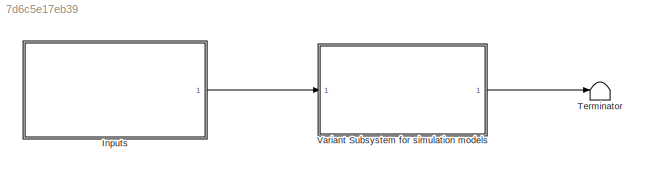
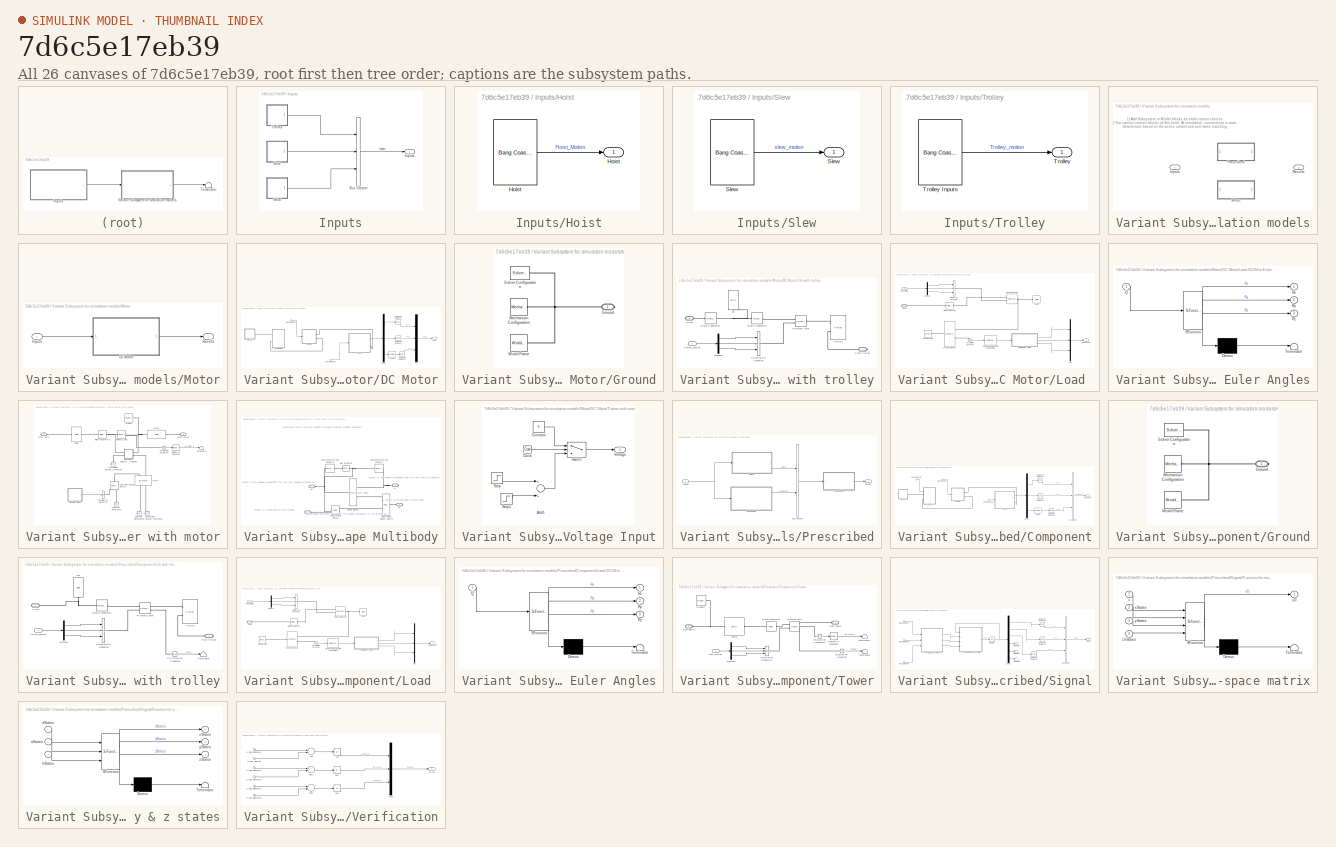
[diagram: thumbnail index - all 26 canvases of the model, root first then tree order]
MODEL slx_7d6c5e17eb39
KIND model
CONFIG AbsTol = auto
CONFIG EnableMultiTasking = off
CONFIG FixedStep = simPrm.h
CONFIG MaxStep = auto
CONFIG MinStep = auto
CONFIG RelTol = 1e-3
CONFIG SampleTimeConstraint = Unconstrained
CONFIG Solver = ode4
CONFIG SolverName = ode4
CONFIG StartTime = 0.0
CONFIG StopTime = simPrm.tEnd
BLOCK [SubSystem] Inputs
  Ports = [0, 1]
  RequestExecContextInheritance = off
BLOCK [BusCreator] Inputs/Bus Creator
  DisplayOption = bar
  InheritFromInputs = on
  Inputs = 3
  OutDataTypeStr = Bus: Inputs
  Ports = [3, 1]
BLOCK [SubSystem] Inputs/Hoist
  Ports = [0, 1]
  RequestExecContextInheritance = off
BLOCK [Reference] Inputs/Hoist/Hoist  REF=bcbLibrary/Bang Coast Bang
  AttributesFormatString = tStart = %<tStart>, tCoast %<tCoast>\npulseWidth = %<tPW>, A = %<amp>\nposIC = %<posIC>, spdIC = %<spdIC>
  Ports = [0, 1]
  SourceBlock = bcbLibrary/Bang Coast Bang
BLOCK [Outport] Inputs/Hoist/Hoist 
  IconDisplay = Port number
BLOCK [Outport] Inputs/Inputs
  IconDisplay = Port number
  OutDataTypeStr = Bus: Inputs
BLOCK [SubSystem] Inputs/Slew
  Ports = [0, 1]
  RequestExecContextInheritance = off
BLOCK [Reference] Inputs/Slew/Slew  REF=bcbLibrary/Bang Coast Bang
  AttributesFormatString = tStart = %<tStart>, tCoast %<tCoast>\npulseWidth = %<tPW>, A = %<amp>\nposIC = %<posIC>, spdIC = %<spdIC>
  Ports = [0, 1]
  SourceBlock = bcbLibrary/Bang Coast Bang
BLOCK [Outport] Inputs/Slew/Slew 
  IconDisplay = Port number
BLOCK [SubSystem] Inputs/Trolley
  Ports = [0, 1]
  RequestExecContextInheritance = off
BLOCK [Outport] Inputs/Trolley/Trolley
  IconDisplay = Port number
BLOCK [Reference] Inputs/Trolley/Trolley Inputs   REF=bcbLibrary/Bang Coast Bang
  AttributesFormatString = tStart = %<tStart>, tCoast %<tCoast>\npulseWidth = %<tPW>, A = %<amp>\nposIC = %<posIC>, spdIC = %<spdIC>
  Ports = [0, 1]
  SourceBlock = bcbLibrary/Bang Coast Bang
BLOCK [Terminator] Terminator
BLOCK [SubSystem] Variant Subsystem for simulation models
  Ports = [1, 1]
  RequestExecContextInheritance = off
  Variant = on
BLOCK [Inport] Variant Subsystem for simulation models/Inputs
  IconDisplay = Port number
  OutDataTypeStr = Bus: Inputs
BLOCK [SubSystem] Variant Subsystem for simulation models/Motor
  Ports = [1, 1]
  RequestExecContextInheritance = off
  VariantControl = SCENARIO==2
BLOCK [SubSystem] Variant Subsystem for simulation models/Motor/DC Motor
  Ports = [1, 1]
  RequestExecContextInheritance = off
BLOCK [Outport] Variant Subsystem for simulation models/Motor/DC Motor/Angles
  IconDisplay = Port number
BLOCK [Demux] Variant Subsystem for simulation models/Motor/DC Motor/Demux
  DisplayOption = bar
  Outputs = 3
  Ports = [1, 3]
BLOCK [SubSystem] Variant Subsystem for simulation models/Motor/DC Motor/Ground
  Ports = [0, 0, 0, 0, 0, 0, 1]
  RequestExecContextInheritance = off
BLOCK [PMIOPort] Variant Subsystem for simulation models/Motor/DC Motor/Ground/Ground
  Side = Right
BLOCK [Reference] Variant Subsystem for simulation models/Motor/DC Motor/Ground/Mechanism Configuration  REF=sm_lib/Utilities/Mechanism
Configuration
  Ports = [0, 0, 0, 0, 0, 0, 1]
  SourceBlock = sm_lib/Utilities/Mechanism\nConfiguration
  SourceProductBaseCode = MS
  SourceProductName = Simscape Multibody
  SourceType = Mechanism\nConfiguration
BLOCK [Reference] Variant Subsystem for simulation models/Motor/DC Motor/Ground/Solver Configuration  REF=nesl_utility/Solver
Configuration
  Ports = [0, 0, 0, 0, 0, 0, 1]
  SourceBlock = nesl_utility/Solver\nConfiguration
  SourceProductBaseCode = SS
  SourceProductName = Simscape
  SourceType = Solver\nConfiguration
BLOCK [Reference] Variant Subsystem for simulation models/Motor/DC Motor/Ground/World Frame  REF=sm_lib/Frames and
Transforms/World Frame
  Ports = [0, 0, 0, 0, 0, 0, 1]
  SourceBlock = sm_lib/Frames and\nTransforms/World Frame
  SourceProductBaseCode = MS
  SourceProductName = Simscape Multibody
  SourceType = World Frame
BLOCK [Inport] Variant Subsystem for simulation models/Motor/DC Motor/In Bus Element
  IconDisplay = Port number
BLOCK [Inport] Variant Subsystem for simulation models/Motor/DC Motor/In Bus Element2
  IconDisplay = Port number
BLOCK [SubSystem] Variant Subsystem for simulation models/Motor/DC Motor/Jib with trolley
  Ports = [1, 0, 0, 0, 0, 0, 2]
  RequestExecContextInheritance = off
BLOCK [Demux] Variant Subsystem for simulation models/Motor/DC Motor/Jib with trolley/Demux1
  DisplayOption = bar
  Outputs = 3
  Ports = [1, 3]
BLOCK [PMIOPort] Variant Subsystem for simulation models/Motor/DC Motor/Jib with trolley/From Trolley
  Side = Right
BLOCK [Reference] Variant Subsystem for simulation models/Motor/DC Motor/Jib with trolley/Jib  REF=sm_lib/Body Elements/Solid
  Ports = [0, 0, 0, 0, 0, 1]
  SourceBlock = sm_lib/Body Elements/Solid
  SourceProductBaseCode = MS
  SourceProductName = Simscape Multibody
  SourceType = Solid
BLOCK [Reference] Variant Subsystem for simulation models/Motor/DC Motor/Jib with trolley/Prismatic Joint  REF=sm_lib/Joints/Prismatic
Joint
  Ports = [0, 0, 0, 0, 0, 2, 1]
  SourceBlock = sm_lib/Joints/Prismatic\nJoint
  SourceProductBaseCode = MS
  SourceProductName = Simscape Multibody
  SourceType = Prismatic\nJoint
BLOCK [Reference] Variant Subsystem for simulation models/Motor/DC Motor/Jib with trolley/Rigid Transform3  REF=sm_lib/Frames and
Transforms/Rigid
Transform
  Ports = [0, 0, 0, 0, 0, 1, 1]
  SourceBlock = sm_lib/Frames and\nTransforms/Rigid\nTransform
  SourceProductBaseCode = MS
  SourceProductName = Simscape Multibody
  SourceType = Rigid\nTransform
BLOCK [Reference] Variant Subsystem for simulation models/Motor/DC Motor/Jib with trolley/Rigid Transform4  REF=sm_lib/Frames and
Transforms/Rigid
Transform
  Ports = [0, 0, 0, 0, 0, 1, 1]
  SourceBlock = sm_lib/Frames and\nTransforms/Rigid\nTransform
  SourceProductBaseCode = MS
  SourceProductName = Simscape Multibody
  SourceType = Rigid\nTransform
BLOCK [Reference] Variant Subsystem for simulation models/Motor/DC Motor/Jib with trolley/Simulink-PS Converter  REF=nesl_utility/Simulink-PS
Converter
  Ports = [3, 0, 0, 0, 0, 0, 1]
  SourceBlock = nesl_utility/Simulink-PS\nConverter
  SourceProductBaseCode = SS
  SourceProductName = Simscape
  SourceType = Simulink-PS\nConverter
BLOCK [PMIOPort] Variant Subsystem for simulation models/Motor/DC Motor/Jib with trolley/To Jib
  Port = 2
  Side = Right
BLOCK [Reference] Variant Subsystem for simulation models/Motor/DC Motor/Jib with trolley/Trolley1  REF=craneLib/Trolley
  Ports = [0, 0, 0, 0, 0, 0, 2]
  SourceBlock = craneLib/Trolley
BLOCK [Inport] Variant Subsystem for simulation models/Motor/DC Motor/Jib with trolley/Trolley_motion
  IconDisplay = Port number
BLOCK [SubSystem] Variant Subsystem for simulation models/Motor/DC Motor/Load 
  Ports = [1, 1, 0, 0, 0, 0, 1]
  RequestExecContextInheritance = off
BLOCK [Outport] Variant Subsystem for simulation models/Motor/DC Motor/Load /Component
  IconDisplay = Port number
BLOCK [SubSystem] Variant Subsystem for simulation models/Motor/DC Motor/Load /DCM to Euler Angles
  ErrorFcn = Stateflow.Translate.translate
  PermitHierarchicalResolution = ExplicitOnly
  Ports = [1, 3]
  RequestExecContextInheritance = off
  SFBlockType = MATLAB Function
  TreatAsAtomicUnit = on
BLOCK [Demux] Variant Subsystem for simulation models/Motor/DC Motor/Load /DCM to Euler Angles/ Demux 
  Outputs = 1
  Ports = [1, 1]
BLOCK [S-Function] Variant Subsystem for simulation models/Motor/DC Motor/Load /DCM to Euler Angles/ SFunction 
  EnableBusSupport = on
  FunctionName = sf_sfun
  PortCounts = [1 4]
  Ports = [1, 4]
  SFcnIsStateOwnerBlock = off
  SFunctionDeploymentMode = off
  Tag = Stateflow S-Function project4Model 1
BLOCK [Terminator] Variant Subsystem for simulation models/Motor/DC Motor/Load /DCM to Euler Angles/ Terminator 
BLOCK [Inport] Variant Subsystem for simulation models/Motor/DC Motor/Load /DCM to Euler Angles/Q
  IconDisplay = Port number
BLOCK [Outport] Variant Subsystem for simulation models/Motor/DC Motor/Load /DCM to Euler Angles/Rx
  IconDisplay = Port number
BLOCK [Outport] Variant Subsystem for simulation models/Motor/DC Motor/Load /DCM to Euler Angles/Ry
  IconDisplay = Port number
  Port = 2
BLOCK [Outport] Variant Subsystem for simulation models/Motor/DC Motor/Load /DCM to Euler Angles/Rz
  IconDisplay = Port number
  Port = 3
BLOCK [Demux] Variant Subsystem for simulation models/Motor/DC Motor/Load /Demux1
  DisplayOption = bar
  Outputs = 3
  Ports = [1, 3]
BLOCK [Inport] Variant Subsystem for simulation models/Motor/DC Motor/Load /Hoist_motion
  IconDisplay = Port number
BLOCK [Reference] Variant Subsystem for simulation models/Motor/DC Motor/Load /Load  REF=sm_lib/Body Elements/Solid
  Ports = [0, 0, 0, 0, 0, 1]
  SourceBlock = sm_lib/Body Elements/Solid
  SourceProductBaseCode = MS
  SourceProductName = Simscape Multibody
  SourceType = Solid
BLOCK [Mux] Variant Subsystem for simulation models/Motor/DC Motor/Load /Mux
  DisplayOption = bar
  Inputs = 3
  Ports = [3, 1]
BLOCK [Reference] Variant Subsystem for simulation models/Motor/DC Motor/Load /PS-Simulink Converter  REF=nesl_utility/PS-Simulink
Converter
  Ports = [0, 1, 0, 0, 0, 1]
  SourceBlock = nesl_utility/PS-Simulink\nConverter
  SourceProductBaseCode = SS
  SourceProductName = Simscape
  SourceType = PS-Simulink\nConverter
BLOCK [Reference] Variant Subsystem for simulation models/Motor/DC Motor/Load /Quaternions to Direction Cosine Matrix  REF=sharedtransform/Quaternions to 
Direction Cosine Matrix
  Ports = [1, 1]
  SourceBlock = sharedtransform/Quaternions to \nDirection Cosine Matrix
  SourceProductBaseCode = AE
  SourceProductName = Aerospace Blockset
  SourceType = Quaternion2DCM
BLOCK [Reference] Variant Subsystem for simulation models/Motor/DC Motor/Load /Rigid Transform5  REF=sm_lib/Frames and
Transforms/Rigid
Transform
  Ports = [0, 0, 0, 0, 0, 1, 1]
  SourceBlock = sm_lib/Frames and\nTransforms/Rigid\nTransform
  SourceProductBaseCode = MS
  SourceProductName = Simscape Multibody
  SourceType = Rigid\nTransform
BLOCK [Reference] Variant Subsystem for simulation models/Motor/DC Motor/Load /Simulink-PS Converter  REF=nesl_utility/Simulink-PS
Converter
  Ports = [3, 0, 0, 0, 0, 0, 1]
  SourceBlock = nesl_utility/Simulink-PS\nConverter
  SourceProductBaseCode = SS
  SourceProductName = Simscape
  SourceType = Simulink-PS\nConverter
BLOCK [Reference] Variant Subsystem for simulation models/Motor/DC Motor/Load /Telescoping Joint  REF=sm_lib/Joints/Telescoping
Joint
  Ports = [0, 0, 0, 0, 0, 2, 1]
  SourceBlock = sm_lib/Joints/Telescoping\nJoint
  SourceProductBaseCode = MS
  SourceProductName = Simscape Multibody
  SourceType = Telescoping\nJoint
BLOCK [PMIOPort] Variant Subsystem for simulation models/Motor/DC Motor/Load /To load 
  Side = Right
BLOCK [Reference] Variant Subsystem for simulation models/Motor/DC Motor/Load /Transform Sensor  REF=sm_lib/Frames and
Transforms/Transform
Sensor
  Ports = [0, 0, 0, 0, 0, 1, 2]
  SourceBlock = sm_lib/Frames and\nTransforms/Transform\nSensor
  SourceProductBaseCode = MS
  SourceProductName = Simscape Multibody
  SourceType = Transform\nSensor
BLOCK [Reference] Variant Subsystem for simulation models/Motor/DC Motor/Load /World Frame  REF=sm_lib/Frames and
Transforms/World Frame
  Ports = [0, 0, 0, 0, 0, 0, 1]
  SourceBlock = sm_lib/Frames and\nTransforms/World Frame
  SourceProductBaseCode = MS
  SourceProductName = Simscape Multibody
  SourceType = World Frame
BLOCK [Mux] Variant Subsystem for simulation models/Motor/DC Motor/Mux
  DisplayOption = bar
  Inputs = 3
  Ports = [3, 1]
BLOCK [Reference] Variant Subsystem for simulation models/Motor/DC Motor/Radians to Degrees1  REF=simulink_extras/Transformations/Radians
to Degrees
  Ports = [1, 1]
  SourceBlock = simulink_extras/Transformations/Radians\nto Degrees
  SourceProductBaseCode = SL
  SourceProductName = Simulink
  SourceType = RadiansToDegrees
BLOCK [Reference] Variant Subsystem for simulation models/Motor/DC Motor/Radians to Degrees2  REF=simulink_extras/Transformations/Radians
to Degrees
  Ports = [1, 1]
  SourceBlock = simulink_extras/Transformations/Radians\nto Degrees
  SourceProductBaseCode = SL
  SourceProductName = Simulink
  SourceType = RadiansToDegrees
BLOCK [Reference] Variant Subsystem for simulation models/Motor/DC Motor/Radians to Degrees3  REF=simulink_extras/Transformations/Radians
to Degrees
  Ports = [1, 1]
  SourceBlock = simulink_extras/Transformations/Radians\nto Degrees
  SourceProductBaseCode = SL
  SourceProductName = Simulink
  SourceType = RadiansToDegrees
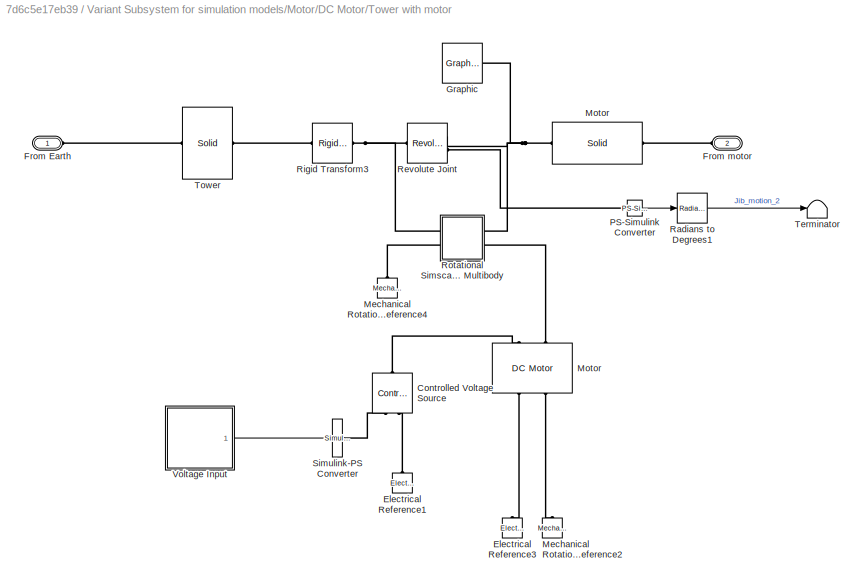
BLOCK [SubSystem] Variant Subsystem for simulation models/Motor/DC Motor/Tower with motor
  Ports = [0, 0, 0, 0, 0, 2]
  RequestExecContextInheritance = off
BLOCK [Reference] Variant Subsystem for simulation models/Motor/DC Motor/Tower with motor/Controlled Voltage Source  REF=fl_lib/Electrical/Electrical Sources/Controlled Voltage
Source
  Ports = [0, 0, 0, 0, 0, 1, 2]
  SourceBlock = fl_lib/Electrical/Electrical Sources/Controlled Voltage\nSource
  SourceProductBaseCode = SS
  SourceProductName = Simscape
  SourceType = Controlled Voltage\nSource
BLOCK [Reference] Variant Subsystem for simulation models/Motor/DC Motor/Tower with motor/Electrical Reference1  REF=fl_lib/Electrical/Electrical Elements/Electrical Reference
  Ports = [0, 0, 0, 0, 0, 1]
  SourceBlock = fl_lib/Electrical/Electrical Elements/Electrical Reference
  SourceProductBaseCode = SS
  SourceProductName = Simscape
  SourceType = Electrical Reference
BLOCK [Reference] Variant Subsystem for simulation models/Motor/DC Motor/Tower with motor/Electrical Reference3  REF=fl_lib/Electrical/Electrical Elements/Electrical Reference
  Ports = [0, 0, 0, 0, 0, 1]
  SourceBlock = fl_lib/Electrical/Electrical Elements/Electrical Reference
  SourceProductBaseCode = SS
  SourceProductName = Simscape
  SourceType = Electrical Reference
BLOCK [PMIOPort] Variant Subsystem for simulation models/Motor/DC Motor/Tower with motor/From Earth
  Side = Left
BLOCK [PMIOPort] Variant Subsystem for simulation models/Motor/DC Motor/Tower with motor/From motor
  Port = 2
  Side = Left
BLOCK [Reference] Variant Subsystem for simulation models/Motor/DC Motor/Tower with motor/Graphic  REF=sm_lib/Body Elements/Graphic
  Ports = [0, 0, 0, 0, 0, 0, 1]
  SourceBlock = sm_lib/Body Elements/Graphic
  SourceProductBaseCode = MS
  SourceProductName = Simscape Multibody
  SourceType = Graphic
BLOCK [Reference] Variant Subsystem for simulation models/Motor/DC Motor/Tower with motor/Mechanical Rotational Reference2  REF=fl_lib/Mechanical/Rotational Elements/Mechanical
Rotational Reference
  Ports = [0, 0, 0, 0, 0, 1]
  SourceBlock = fl_lib/Mechanical/Rotational Elements/Mechanical\nRotational Reference
  SourceProductBaseCode = SS
  SourceProductName = Simscape
  SourceType = Mechanical\nRotational Reference
BLOCK [Reference] Variant Subsystem for simulation models/Motor/DC Motor/Tower with motor/Mechanical Rotational Reference4  REF=fl_lib/Mechanical/Rotational Elements/Mechanical
Rotational Reference
  Ports = [0, 0, 0, 0, 0, 1]
  SourceBlock = fl_lib/Mechanical/Rotational Elements/Mechanical\nRotational Reference
  SourceProductBaseCode = SS
  SourceProductName = Simscape
  SourceType = Mechanical\nRotational Reference
BLOCK [Reference] Variant Subsystem for simulation models/Motor/DC Motor/Tower with motor/Motor   REF=ee_lib/Electromechanical/Brushed Motors/DC Motor
  Ports = [0, 0, 0, 0, 0, 2, 2]
  SourceBlock = ee_lib/Electromechanical/Brushed Motors/DC Motor
  SourceProductBaseCode = PS
  SourceProductName = Simscape Electrical
  SourceType = DC Motor
BLOCK [Reference] Variant Subsystem for simulation models/Motor/DC Motor/Tower with motor/Motor    REF=sm_lib/Body Elements/Solid
  Ports = [0, 0, 0, 0, 0, 1, 1]
  SourceBlock = sm_lib/Body Elements/Solid
  SourceProductBaseCode = MS
  SourceProductName = Simscape Multibody
  SourceType = Solid
BLOCK [Reference] Variant Subsystem for simulation models/Motor/DC Motor/Tower with motor/PS-Simulink Converter  REF=nesl_utility/PS-Simulink
Converter
  Ports = [0, 1, 0, 0, 0, 1]
  SourceBlock = nesl_utility/PS-Simulink\nConverter
  SourceProductBaseCode = SS
  SourceProductName = Simscape
  SourceType = PS-Simulink\nConverter
BLOCK [Reference] Variant Subsystem for simulation models/Motor/DC Motor/Tower with motor/Radians to Degrees1  REF=simulink_extras/Transformations/Radians
to Degrees
  Ports = [1, 1]
  SourceBlock = simulink_extras/Transformations/Radians\nto Degrees
  SourceProductBaseCode = SL
  SourceProductName = Simulink
  SourceType = RadiansToDegrees
BLOCK [Reference] Variant Subsystem for simulation models/Motor/DC Motor/Tower with motor/Revolute Joint  REF=sm_lib/Joints/Revolute Joint
  Ports = [0, 0, 0, 0, 0, 1, 2]
  SourceBlock = sm_lib/Joints/Revolute Joint
  SourceProductBaseCode = MS
  SourceProductName = Simscape Multibody
  SourceType = Revolute Joint
BLOCK [Reference] Variant Subsystem for simulation models/Motor/DC Motor/Tower with motor/Rigid Transform3  REF=sm_lib/Frames and
Transforms/Rigid
Transform
  Ports = [0, 0, 0, 0, 0, 1, 1]
  SourceBlock = sm_lib/Frames and\nTransforms/Rigid\nTransform
  SourceProductBaseCode = MS
  SourceProductName = Simscape Multibody
  SourceType = Rigid\nTransform
BLOCK [SubSystem] Variant Subsystem for simulation models/Motor/DC Motor/Tower with motor/Rotational Simscape Multibody
  Ports = [0, 0, 0, 0, 0, 2, 2]
  RequestExecContextInheritance = off
  Tag = PublishSubsystem
BLOCK [PMIOPort] Variant Subsystem for simulation models/Motor/DC Motor/Tower with motor/Rotational Simscape Multibody/B
  Port = 2
  Side = Left
BLOCK [PMIOPort] Variant Subsystem for simulation models/Motor/DC Motor/Tower with motor/Rotational Simscape Multibody/C
  Port = 4
  Side = Left
BLOCK [Reference] Variant Subsystem for simulation models/Motor/DC Motor/Tower with motor/Rotational Simscape Multibody/External Force and Torque B  REF=sm_lib/Forces and
Torques/External Force
and Torque
  Commented = on
  Ports = [0, 0, 0, 0, 0, 1, 1]
  SourceBlock = sm_lib/Forces and\nTorques/External Force\nand Torque
  SourceProductBaseCode = MS
  SourceProductName = Simscape Multibody
  SourceType = External Force\nand Torque
BLOCK [Reference] Variant Subsystem for simulation models/Motor/DC Motor/Tower with motor/Rotational Simscape Multibody/External Force and Torque F  REF=sm_lib/Forces and
Torques/External Force
and Torque
  Ports = [0, 0, 0, 0, 0, 1, 1]
  SourceBlock = sm_lib/Forces and\nTorques/External Force\nand Torque
  SourceProductBaseCode = MS
  SourceProductName = Simscape Multibody
  SourceType = External Force\nand Torque
BLOCK [PMIOPort] Variant Subsystem for simulation models/Motor/DC Motor/Tower with motor/Rotational Simscape Multibody/F
  Side = Right
BLOCK [Reference] Variant Subsystem for simulation models/Motor/DC Motor/Tower with motor/Rotational Simscape Multibody/Ideal Angular Velocity Source  REF=fl_lib/Mechanical/Mechanical Sources/Ideal Angular
Velocity Source
  Ports = [0, 0, 0, 0, 0, 1, 2]
  SourceBlock = fl_lib/Mechanical/Mechanical Sources/Ideal Angular\nVelocity Source
  SourceProductBaseCode = SS
  SourceProductName = Simscape
  SourceType = Ideal Angular\nVelocity Source
BLOCK [Reference] Variant Subsystem for simulation models/Motor/DC Motor/Tower with motor/Rotational Simscape Multibody/Ideal Torque Sensor  REF=fl_lib/Mechanical/Mechanical Sensors/Ideal Torque Sensor
  Ports = [0, 0, 0, 0, 0, 1, 2]
  SourceBlock = fl_lib/Mechanical/Mechanical Sensors/Ideal Torque Sensor
  SourceProductBaseCode = SS
  SourceProductName = Simscape
  SourceType = Ideal Torque Sensor
BLOCK [PMIOPort] Variant Subsystem for simulation models/Motor/DC Motor/Tower with motor/Rotational Simscape Multibody/R
  Port = 3
  Side = Right
BLOCK [Reference] Variant Subsystem for simulation models/Motor/DC Motor/Tower with motor/Rotational Simscape Multibody/Sign Torque B  REF=fl_ps_legacy_lib/Legacy Physical
Signals/Functions/PS Gain
  Commented = on
  Ports = [0, 0, 0, 0, 0, 1, 1]
  SourceBlock = fl_ps_legacy_lib/Legacy Physical\nSignals/Functions/PS Gain
  SourceProductBaseCode = SS
  SourceProductName = Simscape
  SourceType = PS Gain
BLOCK [Reference] Variant Subsystem for simulation models/Motor/DC Motor/Tower with motor/Rotational Simscape Multibody/Speed Sensor  REF=sm_lib/Frames and
Transforms/Transform
Sensor
  Ports = [0, 0, 0, 0, 0, 1, 2]
  SourceBlock = sm_lib/Frames and\nTransforms/Transform\nSensor
  SourceProductBaseCode = MS
  SourceProductName = Simscape Multibody
  SourceType = Transform\nSensor
BLOCK [Reference] Variant Subsystem for simulation models/Motor/DC Motor/Tower with motor/Simulink-PS Converter  REF=nesl_utility/Simulink-PS
Converter
  Ports = [1, 0, 0, 0, 0, 0, 1]
  SourceBlock = nesl_utility/Simulink-PS\nConverter
  SourceProductBaseCode = SS
  SourceProductName = Simscape
  SourceType = Simulink-PS\nConverter
BLOCK [Terminator] Variant Subsystem for simulation models/Motor/DC Motor/Tower with motor/Terminator
BLOCK [Reference] Variant Subsystem for simulation models/Motor/DC Motor/Tower with motor/Tower  REF=sm_lib/Body Elements/Solid
  Ports = [0, 0, 0, 0, 0, 1, 1]
  SourceBlock = sm_lib/Body Elements/Solid
  SourceProductBaseCode = MS
  SourceProductName = Simscape Multibody
  SourceType = Solid
BLOCK [SubSystem] Variant Subsystem for simulation models/Motor/DC Motor/Tower with motor/Voltage Input
  Ports = [0, 1]
  RequestExecContextInheritance = off
BLOCK [Sum] Variant Subsystem for simulation models/Motor/DC Motor/Tower with motor/Voltage Input/Add1
  InputSameDT = off
  OutDataTypeStr = Inherit: Inherit via internal rule
  Ports = [2, 1]
  SaturateOnIntegerOverflow = off
BLOCK [Clock] Variant Subsystem for simulation models/Motor/DC Motor/Tower with motor/Voltage Input/Clock
  Decimation = 1
BLOCK [Constant] Variant Subsystem for simulation models/Motor/DC Motor/Tower with motor/Voltage Input/Constant
  Value = 0
BLOCK [Step] Variant Subsystem for simulation models/Motor/DC Motor/Tower with motor/Voltage Input/Step
  After = P_amp
  SampleTime = 0
  Time = tStart
BLOCK [Step] Variant Subsystem for simulation models/Motor/DC Motor/Tower with motor/Voltage Input/Step1
  After = -N_amp
  SampleTime = 0
  Time = tStart+tDuration
BLOCK [Switch] Variant Subsystem for simulation models/Motor/DC Motor/Tower with motor/Voltage Input/Switch
  InputSameDT = off
  SaturateOnIntegerOverflow = off
  Threshold = tCondition
BLOCK [Outport] Variant Subsystem for simulation models/Motor/DC Motor/Tower with motor/Voltage Input/Voltage
  IconDisplay = Port number
BLOCK [Reference] Variant Subsystem for simulation models/Motor/DC Motor/Unwrap  REF=dspsigops/Unwrap
  Ports = [1, 1]
  SourceBlock = dspsigops/Unwrap
  SourceProductBaseCode = DS
  SourceProductName = DSP System Toolbox
  SourceType = Unwrap
  UserDataPersistent = on
BLOCK [Inport] Variant Subsystem for simulation models/Motor/Inputs
  IconDisplay = Port number
  OutDataTypeStr = Bus: Inputs
BLOCK [Outport] Variant Subsystem for simulation models/Motor/Results 
  IconDisplay = Port number
BLOCK [SubSystem] Variant Subsystem for simulation models/Prescribed
  Ports = [1, 1]
  RequestExecContextInheritance = off
  VariantControl = SCENARIO==1
BLOCK [BusCreator] Variant Subsystem for simulation models/Prescribed/Bus Creator
  DisplayOption = bar
  InheritFromInputs = on
  Inputs = 2
  Ports = [2, 1]
BLOCK [SubSystem] Variant Subsystem for simulation models/Prescribed/Component
  Ports = [1, 1]
  RequestExecContextInheritance = off
BLOCK [BusCreator] Variant Subsystem for simulation models/Prescribed/Component/Bus Creator
  DisplayOption = bar
  InheritFromInputs = on
  Inputs = 3
  OutDataTypeStr = Bus: Component
  Ports = [3, 1]
BLOCK [Outport] Variant Subsystem for simulation models/Prescribed/Component/Component
  IconDisplay = Port number
  OutDataTypeStr = Bus: Component
BLOCK [Demux] Variant Subsystem for simulation models/Prescribed/Component/Demux
  DisplayOption = bar
  Outputs = 3
  Ports = [1, 3]
BLOCK [SubSystem] Variant Subsystem for simulation models/Prescribed/Component/Ground
  Ports = [0, 0, 0, 0, 0, 0, 1]
  RequestExecContextInheritance = off
BLOCK [PMIOPort] Variant Subsystem for simulation models/Prescribed/Component/Ground/Ground
  Side = Right
BLOCK [Reference] Variant Subsystem for simulation models/Prescribed/Component/Ground/Mechanism Configuration  REF=sm_lib/Utilities/Mechanism
Configuration
  Ports = [0, 0, 0, 0, 0, 0, 1]
  SourceBlock = sm_lib/Utilities/Mechanism\nConfiguration
  SourceProductBaseCode = MS
  SourceProductName = Simscape Multibody
  SourceType = Mechanism\nConfiguration
BLOCK [Reference] Variant Subsystem for simulation models/Prescribed/Component/Ground/Solver Configuration  REF=nesl_utility/Solver
Configuration
  Ports = [0, 0, 0, 0, 0, 0, 1]
  SourceBlock = nesl_utility/Solver\nConfiguration
  SourceProductBaseCode = SS
  SourceProductName = Simscape
  SourceType = Solver\nConfiguration
BLOCK [Reference] Variant Subsystem for simulation models/Prescribed/Component/Ground/World Frame  REF=sm_lib/Frames and
Transforms/World Frame
  Ports = [0, 0, 0, 0, 0, 0, 1]
  SourceBlock = sm_lib/Frames and\nTransforms/World Frame
  SourceProductBaseCode = MS
  SourceProductName = Simscape Multibody
  SourceType = World Frame
BLOCK [Inport] Variant Subsystem for simulation models/Prescribed/Component/In Bus Element
  IconDisplay = Port number
BLOCK [Inport] Variant Subsystem for simulation models/Prescribed/Component/In Bus Element1
  IconDisplay = Port number
BLOCK [Inport] Variant Subsystem for simulation models/Prescribed/Component/In Bus Element2
  IconDisplay = Port number
BLOCK [SubSystem] Variant Subsystem for simulation models/Prescribed/Component/Jib with trolley
  Ports = [1, 0, 0, 0, 0, 0, 2]
  RequestExecContextInheritance = off
BLOCK [Demux] Variant Subsystem for simulation models/Prescribed/Component/Jib with trolley/Demux1
  DisplayOption = bar
  Outputs = 3
  Ports = [1, 3]
BLOCK [PMIOPort] Variant Subsystem for simulation models/Prescribed/Component/Jib with trolley/From Trolley
  Side = Right
BLOCK [Reference] Variant Subsystem for simulation models/Prescribed/Component/Jib with trolley/Jib  REF=sm_lib/Body Elements/Solid
  Ports = [0, 0, 0, 0, 0, 1]
  SourceBlock = sm_lib/Body Elements/Solid
  SourceProductBaseCode = MS
  SourceProductName = Simscape Multibody
  SourceType = Solid
BLOCK [Reference] Variant Subsystem for simulation models/Prescribed/Component/Jib with trolley/PS-Simulink Converter  REF=nesl_utility/PS-Simulink
Converter
  Ports = [0, 1, 0, 0, 0, 1]
  SourceBlock = nesl_utility/PS-Simulink\nConverter
  SourceProductBaseCode = SS
  SourceProductName = Simscape
  SourceType = PS-Simulink\nConverter
BLOCK [Reference] Variant Subsystem for simulation models/Prescribed/Component/Jib with trolley/Prismatic Joint  REF=sm_lib/Joints/Prismatic
Joint
  Ports = [0, 0, 0, 0, 0, 2, 2]
  SourceBlock = sm_lib/Joints/Prismatic\nJoint
  SourceProductBaseCode = MS
  SourceProductName = Simscape Multibody
  SourceType = Prismatic\nJoint
BLOCK [Reference] Variant Subsystem for simulation models/Prescribed/Component/Jib with trolley/Rigid Transform4  REF=sm_lib/Frames and
Transforms/Rigid
Transform
  Ports = [0, 0, 0, 0, 0, 1, 1]
  SourceBlock = sm_lib/Frames and\nTransforms/Rigid\nTransform
  SourceProductBaseCode = MS
  SourceProductName = Simscape Multibody
  SourceType = Rigid\nTransform
BLOCK [Reference] Variant Subsystem for simulation models/Prescribed/Component/Jib with trolley/Simulink-PS Converter  REF=nesl_utility/Simulink-PS
Converter
  Ports = [3, 0, 0, 0, 0, 0, 1]
  SourceBlock = nesl_utility/Simulink-PS\nConverter
  SourceProductBaseCode = SS
  SourceProductName = Simscape
  SourceType = Simulink-PS\nConverter
BLOCK [Terminator] Variant Subsystem for simulation models/Prescribed/Component/Jib with trolley/Terminator
BLOCK [PMIOPort] Variant Subsystem for simulation models/Prescribed/Component/Jib with trolley/To Jib
  Port = 2
  Side = Right
BLOCK [Reference] Variant Subsystem for simulation models/Prescribed/Component/Jib with trolley/Trolley1  REF=craneLib/Trolley
  Ports = [0, 0, 0, 0, 0, 0, 2]
  SourceBlock = craneLib/Trolley
BLOCK [Inport] Variant Subsystem for simulation models/Prescribed/Component/Jib with trolley/Trolley_motion
  IconDisplay = Port number
BLOCK [SubSystem] Variant Subsystem for simulation models/Prescribed/Component/Load 
  Ports = [1, 1, 0, 0, 0, 0, 1]
  RequestExecContextInheritance = off
BLOCK [Outport] Variant Subsystem for simulation models/Prescribed/Component/Load /Component
  IconDisplay = Port number
BLOCK [SubSystem] Variant Subsystem for simulation models/Prescribed/Component/Load /DCM to Euler Angles
  ErrorFcn = Stateflow.Translate.translate
  PermitHierarchicalResolution = ExplicitOnly
  Ports = [1, 3]
  RequestExecContextInheritance = off
  SFBlockType = MATLAB Function
  TreatAsAtomicUnit = on
BLOCK [Demux] Variant Subsystem for simulation models/Prescribed/Component/Load /DCM to Euler Angles/ Demux 
  Outputs = 1
  Ports = [1, 1]
BLOCK [S-Function] Variant Subsystem for simulation models/Prescribed/Component/Load /DCM to Euler Angles/ SFunction 
  EnableBusSupport = on
  FunctionName = sf_sfun
  PortCounts = [1 4]
  Ports = [1, 4]
  SFcnIsStateOwnerBlock = off
  SFunctionDeploymentMode = off
  Tag = Stateflow S-Function project4Model 5
BLOCK [Terminator] Variant Subsystem for simulation models/Prescribed/Component/Load /DCM to Euler Angles/ Terminator 
BLOCK [Inport] Variant Subsystem for simulation models/Prescribed/Component/Load /DCM to Euler Angles/Q
  IconDisplay = Port number
BLOCK [Outport] Variant Subsystem for simulation models/Prescribed/Component/Load /DCM to Euler Angles/Rx
  IconDisplay = Port number
BLOCK [Outport] Variant Subsystem for simulation models/Prescribed/Component/Load /DCM to Euler Angles/Ry
  IconDisplay = Port number
  Port = 2
BLOCK [Outport] Variant Subsystem for simulation models/Prescribed/Component/Load /DCM to Euler Angles/Rz
  IconDisplay = Port number
  Port = 3
BLOCK [Demux] Variant Subsystem for simulation models/Prescribed/Component/Load /Demux1
  DisplayOption = bar
  Outputs = 3
  Ports = [1, 3]
BLOCK [Inport] Variant Subsystem for simulation models/Prescribed/Component/Load /Hoist_motion
  IconDisplay = Port number
BLOCK [Reference] Variant Subsystem for simulation models/Prescribed/Component/Load /Load  REF=sm_lib/Body Elements/Solid
  Ports = [0, 0, 0, 0, 0, 1]
  SourceBlock = sm_lib/Body Elements/Solid
  SourceProductBaseCode = MS
  SourceProductName = Simscape Multibody
  SourceType = Solid
BLOCK [Mux] Variant Subsystem for simulation models/Prescribed/Component/Load /Mux
  DisplayOption = bar
  Inputs = 3
  Ports = [3, 1]
BLOCK [Reference] Variant Subsystem for simulation models/Prescribed/Component/Load /PS-Simulink Converter  REF=nesl_utility/PS-Simulink
Converter
  Ports = [0, 1, 0, 0, 0, 1]
  SourceBlock = nesl_utility/PS-Simulink\nConverter
  SourceProductBaseCode = SS
  SourceProductName = Simscape
  SourceType = PS-Simulink\nConverter
BLOCK [Reference] Variant Subsystem for simulation models/Prescribed/Component/Load /Quaternions to Direction Cosine Matrix  REF=sharedtransform/Quaternions to 
Direction Cosine Matrix
  Ports = [1, 1]
  SourceBlock = sharedtransform/Quaternions to \nDirection Cosine Matrix
  SourceProductBaseCode = AE
  SourceProductName = Aerospace Blockset
  SourceType = Quaternion2DCM
BLOCK [Reference] Variant Subsystem for simulation models/Prescribed/Component/Load /Rigid Transform5  REF=sm_lib/Frames and
Transforms/Rigid
Transform
  Ports = [0, 0, 0, 0, 0, 1, 1]
  SourceBlock = sm_lib/Frames and\nTransforms/Rigid\nTransform
  SourceProductBaseCode = MS
  SourceProductName = Simscape Multibody
  SourceType = Rigid\nTransform
BLOCK [Reference] Variant Subsystem for simulation models/Prescribed/Component/Load /Simulink-PS Converter  REF=nesl_utility/Simulink-PS
Converter
  Ports = [3, 0, 0, 0, 0, 0, 1]
  SourceBlock = nesl_utility/Simulink-PS\nConverter
  SourceProductBaseCode = SS
  SourceProductName = Simscape
  SourceType = Simulink-PS\nConverter
BLOCK [Reference] Variant Subsystem for simulation models/Prescribed/Component/Load /Telescoping Joint  REF=sm_lib/Joints/Telescoping
Joint
  Ports = [0, 0, 0, 0, 0, 2, 1]
  SourceBlock = sm_lib/Joints/Telescoping\nJoint
  SourceProductBaseCode = MS
  SourceProductName = Simscape Multibody
  SourceType = Telescoping\nJoint
BLOCK [PMIOPort] Variant Subsystem for simulation models/Prescribed/Component/Load /To load 
  Side = Right
BLOCK [Reference] Variant Subsystem for simulation models/Prescribed/Component/Load /Transform Sensor  REF=sm_lib/Frames and
Transforms/Transform
Sensor
  Ports = [0, 0, 0, 0, 0, 1, 2]
  SourceBlock = sm_lib/Frames and\nTransforms/Transform\nSensor
  SourceProductBaseCode = MS
  SourceProductName = Simscape Multibody
  SourceType = Transform\nSensor
BLOCK [Reference] Variant Subsystem for simulation models/Prescribed/Component/Load /World Frame  REF=sm_lib/Frames and
Transforms/World Frame
  Ports = [0, 0, 0, 0, 0, 0, 1]
  SourceBlock = sm_lib/Frames and\nTransforms/World Frame
  SourceProductBaseCode = MS
  SourceProductName = Simscape Multibody
  SourceType = World Frame
BLOCK [Reference] Variant Subsystem for simulation models/Prescribed/Component/Radians to Degrees1  REF=simulink_extras/Transformations/Radians
to Degrees
  Ports = [1, 1]
  SourceBlock = simulink_extras/Transformations/Radians\nto Degrees
  SourceProductBaseCode = SL
  SourceProductName = Simulink
  SourceType = RadiansToDegrees
BLOCK [Reference] Variant Subsystem for simulation models/Prescribed/Component/Radians to Degrees2  REF=simulink_extras/Transformations/Radians
to Degrees
  Ports = [1, 1]
  SourceBlock = simulink_extras/Transformations/Radians\nto Degrees
  SourceProductBaseCode = SL
  SourceProductName = Simulink
  SourceType = RadiansToDegrees
BLOCK [Reference] Variant Subsystem for simulation models/Prescribed/Component/Radians to Degrees3  REF=simulink_extras/Transformations/Radians
to Degrees
  Ports = [1, 1]
  SourceBlock = simulink_extras/Transformations/Radians\nto Degrees
  SourceProductBaseCode = SL
  SourceProductName = Simulink
  SourceType = RadiansToDegrees
BLOCK [SubSystem] Variant Subsystem for simulation models/Prescribed/Component/Tower
  Ports = [1, 0, 0, 0, 0, 2]
  RequestExecContextInheritance = off
BLOCK [Demux] Variant Subsystem for simulation models/Prescribed/Component/Tower/Demux3
  DisplayOption = bar
  Outputs = 3
  Ports = [1, 3]
BLOCK [PMIOPort] Variant Subsystem for simulation models/Prescribed/Component/Tower/From Earth
  Side = Left
BLOCK [PMIOPort] Variant Subsystem for simulation models/Prescribed/Component/Tower/From Tower
  Port = 2
  Side = Left
BLOCK [Reference] Variant Subsystem for simulation models/Prescribed/Component/Tower/Graphic  REF=sm_lib/Body Elements/Graphic
  Ports = [0, 0, 0, 0, 0, 0, 1]
  SourceBlock = sm_lib/Body Elements/Graphic
  SourceProductBaseCode = MS
  SourceProductName = Simscape Multibody
  SourceType = Graphic
BLOCK [Reference] Variant Subsystem for simulation models/Prescribed/Component/Tower/PS-Simulink Converter  REF=nesl_utility/PS-Simulink
Converter
  Ports = [0, 1, 0, 0, 0, 1]
  SourceBlock = nesl_utility/PS-Simulink\nConverter
  SourceProductBaseCode = SS
  SourceProductName = Simscape
  SourceType = PS-Simulink\nConverter
BLOCK [Reference] Variant Subsystem for simulation models/Prescribed/Component/Tower/PS-Simulink Converter1  REF=nesl_utility/PS-Simulink
Converter
  Ports = [0, 1, 0, 0, 0, 1]
  SourceBlock = nesl_utility/PS-Simulink\nConverter
  SourceProductBaseCode = SS
  SourceProductName = Simscape
  SourceType = PS-Simulink\nConverter
BLOCK [Reference] Variant Subsystem for simulation models/Prescribed/Component/Tower/Radians to Degrees1  REF=simulink_extras/Transformations/Radians
to Degrees
  Ports = [1, 1]
  SourceBlock = simulink_extras/Transformations/Radians\nto Degrees
  SourceProductBaseCode = SL
  SourceProductName = Simulink
  SourceType = RadiansToDegrees
BLOCK [Reference] Variant Subsystem for simulation models/Prescribed/Component/Tower/Revolute Joint  REF=sm_lib/Joints/Revolute Joint
  Ports = [0, 0, 0, 0, 0, 2, 3]
  SourceBlock = sm_lib/Joints/Revolute Joint
  SourceProductBaseCode = MS
  SourceProductName = Simscape Multibody
  SourceType = Revolute Joint
BLOCK [Reference] Variant Subsystem for simulation models/Prescribed/Component/Tower/Rigid Transform3  REF=sm_lib/Frames and
Transforms/Rigid
Transform
  Ports = [0, 0, 0, 0, 0, 1, 1]
  SourceBlock = sm_lib/Frames and\nTransforms/Rigid\nTransform
  SourceProductBaseCode = MS
  SourceProductName = Simscape Multibody
  SourceType = Rigid\nTransform
BLOCK [Reference] Variant Subsystem for simulation models/Prescribed/Component/Tower/Simulink-PS Converter1  REF=nesl_utility/Simulink-PS
Converter
  Ports = [3, 0, 0, 0, 0, 0, 1]
  SourceBlock = nesl_utility/Simulink-PS\nConverter
  SourceProductBaseCode = SS
  SourceProductName = Simscape
  SourceType = Simulink-PS\nConverter
BLOCK [Inport] Variant Subsystem for simulation models/Prescribed/Component/Tower/Slew_motion
  IconDisplay = Port number
BLOCK [Terminator] Variant Subsystem for simulation models/Prescribed/Component/Tower/Terminator
BLOCK [Terminator] Variant Subsystem for simulation models/Prescribed/Component/Tower/Terminator1
BLOCK [Reference] Variant Subsystem for simulation models/Prescribed/Component/Tower/Tower  REF=sm_lib/Body Elements/Solid
  Ports = [0, 0, 0, 0, 0, 1, 1]
  SourceBlock = sm_lib/Body Elements/Solid
  SourceProductBaseCode = MS
  SourceProductName = Simscape Multibody
  SourceType = Solid
BLOCK [Reference] Variant Subsystem for simulation models/Prescribed/Component/Unwrap  REF=dspsigops/Unwrap
  Ports = [1, 1]
  SourceBlock = dspsigops/Unwrap
  SourceProductBaseCode = DS
  SourceProductName = DSP System Toolbox
  SourceType = Unwrap
  UserDataPersistent = on
BLOCK [Inport] Variant Subsystem for simulation models/Prescribed/Inputs
  IconDisplay = Port number
  OutDataTypeStr = Bus: Inputs
BLOCK [Outport] Variant Subsystem for simulation models/Prescribed/Results
  IconDisplay = Port number
BLOCK [SubSystem] Variant Subsystem for simulation models/Prescribed/Signal
  Ports = [1, 1]
  RequestExecContextInheritance = off
BLOCK [BusCreator] Variant Subsystem for simulation models/Prescribed/Signal/Bus Creator
  DisplayOption = bar
  InheritFromInputs = on
  Inputs = 3
  OutDataTypeStr = Bus: Signal
  Ports = [3, 1]
BLOCK [Demux] Variant Subsystem for simulation models/Prescribed/Signal/Demux
  DisplayOption = bar
  Outputs = 6
  Ports = [1, 6]
BLOCK [SubSystem] Variant Subsystem for simulation models/Prescribed/Signal/Function for state-space matrix
  ErrorFcn = Stateflow.Translate.translate
  PermitHierarchicalResolution = ExplicitOnly
  Ports = [4, 1]
  RequestExecContextInheritance = off
  SFBlockType = MATLAB Function
  TreatAsAtomicUnit = on
BLOCK [Demux] Variant Subsystem for simulation models/Prescribed/Signal/Function for state-space matrix/ Demux 
  Outputs = 1
  Ports = [1, 1]
BLOCK [S-Function] Variant Subsystem for simulation models/Prescribed/Signal/Function for state-space matrix/ SFunction 
  EnableBusSupport = on
  FunctionName = sf_sfun
  Parameters = lod,planet
  PortCounts = [4 2]
  Ports = [4, 2]
  SFcnIsStateOwnerBlock = off
  SFunctionDeploymentMode = off
  Tag = Stateflow S-Function project4Model 2
BLOCK [Terminator] Variant Subsystem for simulation models/Prescribed/Signal/Function for state-space matrix/ Terminator 
BLOCK [Inport] Variant Subsystem for simulation models/Prescribed/Signal/Function for state-space matrix/LhStates
  IconDisplay = Port number
  Port = 4
BLOCK [Inport] Variant Subsystem for simulation models/Prescribed/Signal/Function for state-space matrix/x
  IconDisplay = Port number
BLOCK [Outport] Variant Subsystem for simulation models/Prescribed/Signal/Function for state-space matrix/xD
  IconDisplay = Port number
BLOCK [Inport] Variant Subsystem for simulation models/Prescribed/Signal/Function for state-space matrix/xStates
  IconDisplay = Port number
  Port = 2
BLOCK [Inport] Variant Subsystem for simulation models/Prescribed/Signal/Function for state-space matrix/yStates
  IconDisplay = Port number
  Port = 3
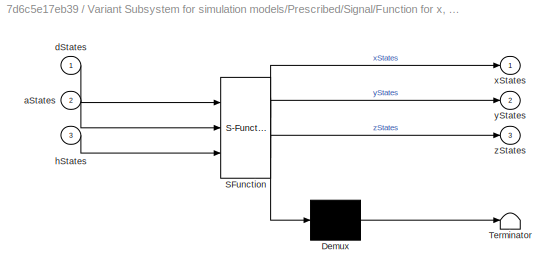
BLOCK [SubSystem] Variant Subsystem for simulation models/Prescribed/Signal/Function for x, y & z states
  ErrorFcn = Stateflow.Translate.translate
  PermitHierarchicalResolution = ExplicitOnly
  Ports = [3, 3]
  RequestExecContextInheritance = off
  SFBlockType = MATLAB Function
  TreatAsAtomicUnit = on
BLOCK [Demux] Variant Subsystem for simulation models/Prescribed/Signal/Function for x, y & z states/ Demux 
  Outputs = 1
  Ports = [1, 1]
BLOCK [S-Function] Variant Subsystem for simulation models/Prescribed/Signal/Function for x, y & z states/ SFunction 
  EnableBusSupport = on
  FunctionName = sf_sfun
  Parameters = lod,trol
  PortCounts = [3 4]
  Ports = [3, 4]
  SFcnIsStateOwnerBlock = off
  SFunctionDeploymentMode = off
  Tag = Stateflow S-Function project4Model 3
BLOCK [Terminator] Variant Subsystem for simulation models/Prescribed/Signal/Function for x, y & z states/ Terminator 
BLOCK [Inport] Variant Subsystem for simulation models/Prescribed/Signal/Function for x, y & z states/aStates
  IconDisplay = Port number
  Port = 2
BLOCK [Inport] Variant Subsystem for simulation models/Prescribed/Signal/Function for x, y & z states/dStates
  IconDisplay = Port number
BLOCK [Inport] Variant Subsystem for simulation models/Prescribed/Signal/Function for x, y & z states/hStates
  IconDisplay = Port number
  Port = 3
BLOCK [Outport] Variant Subsystem for simulation models/Prescribed/Signal/Function for x, y & z states/xStates
  IconDisplay = Port number
BLOCK [Outport] Variant Subsystem for simulation models/Prescribed/Signal/Function for x, y & z states/yStates
  IconDisplay = Port number
  Port = 2
BLOCK [Outport] Variant Subsystem for simulation models/Prescribed/Signal/Function for x, y & z states/zStates
  IconDisplay = Port number
  Port = 3
BLOCK [Inport] Variant Subsystem for simulation models/Prescribed/Signal/In Bus Element
  IconDisplay = Port number
BLOCK [Inport] Variant Subsystem for simulation models/Prescribed/Signal/In Bus Element1
  IconDisplay = Port number
BLOCK [Inport] Variant Subsystem for simulation models/Prescribed/Signal/In Bus Element2
  IconDisplay = Port number
BLOCK [Integrator] Variant Subsystem for simulation models/Prescribed/Signal/Integrator
  InitialCondition = [0;0;0;0;0;0]
  Ports = [1, 1]
BLOCK [Reference] Variant Subsystem for simulation models/Prescribed/Signal/Radians to Degrees1  REF=simulink_extras/Transformations/Radians
to Degrees
  Ports = [1, 1]
  SourceBlock = simulink_extras/Transformations/Radians\nto Degrees
  SourceProductBaseCode = SL
  SourceProductName = Simulink
  SourceType = RadiansToDegrees
BLOCK [Reference] Variant Subsystem for simulation models/Prescribed/Signal/Radians to Degrees2  REF=simulink_extras/Transformations/Radians
to Degrees
  Ports = [1, 1]
  SourceBlock = simulink_extras/Transformations/Radians\nto Degrees
  SourceProductBaseCode = SL
  SourceProductName = Simulink
  SourceType = RadiansToDegrees
BLOCK [Reference] Variant Subsystem for simulation models/Prescribed/Signal/Radians to Degrees3  REF=simulink_extras/Transformations/Radians
to Degrees
  Ports = [1, 1]
  SourceBlock = simulink_extras/Transformations/Radians\nto Degrees
  SourceProductBaseCode = SL
  SourceProductName = Simulink
  SourceType = RadiansToDegrees
BLOCK [Outport] Variant Subsystem for simulation models/Prescribed/Signal/Signal
  IconDisplay = Port number
  OutDataTypeStr = Bus: Signal
BLOCK [Terminator] Variant Subsystem for simulation models/Prescribed/Signal/Terminator
BLOCK [Terminator] Variant Subsystem for simulation models/Prescribed/Signal/Terminator1
BLOCK [Terminator] Variant Subsystem for simulation models/Prescribed/Signal/Terminator2
BLOCK [SubSystem] Variant Subsystem for simulation models/Prescribed/Verification
  Ports = [1, 1]
  RequestExecContextInheritance = off
BLOCK [Abs] Variant Subsystem for simulation models/Prescribed/Verification/Abs
  SaturateOnIntegerOverflow = off
BLOCK [Abs] Variant Subsystem for simulation models/Prescribed/Verification/Abs1
  SaturateOnIntegerOverflow = off
BLOCK [Abs] Variant Subsystem for simulation models/Prescribed/Verification/Abs2
  SaturateOnIntegerOverflow = off
BLOCK [Sum] Variant Subsystem for simulation models/Prescribed/Verification/Add
  InputSameDT = off
  Inputs = +-
  OutDataTypeStr = Inherit: Inherit via internal rule
  Ports = [2, 1]
  SaturateOnIntegerOverflow = off
BLOCK [Sum] Variant Subsystem for simulation models/Prescribed/Verification/Add1
  InputSameDT = off
  Inputs = +-
  OutDataTypeStr = Inherit: Inherit via internal rule
  Ports = [2, 1]
  SaturateOnIntegerOverflow = off
BLOCK [Sum] Variant Subsystem for simulation models/Prescribed/Verification/Add2
  InputSameDT = off
  Inputs = +-
  OutDataTypeStr = Inherit: Inherit via internal rule
  Ports = [2, 1]
  SaturateOnIntegerOverflow = off
BLOCK [Outport] Variant Subsystem for simulation models/Prescribed/Verification/Errors
  IconDisplay = Port number
BLOCK [Inport] Variant Subsystem for simulation models/Prescribed/Verification/In Bus Element
  IconDisplay = Port number
BLOCK [Inport] Variant Subsystem for simulation models/Prescribed/Verification/In Bus Element1
  IconDisplay = Port number
BLOCK [Inport] Variant Subsystem for simulation models/Prescribed/Verification/In Bus Element2
  IconDisplay = Port number
BLOCK [Inport] Variant Subsystem for simulation models/Prescribed/Verification/In Bus Element3
  IconDisplay = Port number
BLOCK [Inport] Variant Subsystem for simulation models/Prescribed/Verification/In Bus Element4
  IconDisplay = Port number
BLOCK [Inport] Variant Subsystem for simulation models/Prescribed/Verification/In Bus Element5
  IconDisplay = Port number
BLOCK [Mux] Variant Subsystem for simulation models/Prescribed/Verification/Mux
  DisplayOption = bar
  Inputs = 3
  Ports = [3, 1]
BLOCK [Outport] Variant Subsystem for simulation models/Results 
  IconDisplay = Port number
ANNOTATION Variant Subsystem for simulation models: 1) Add Subsystem or Model blocks as valid variant choices. 2) You cannot connect blocks at this level. At simulation, connectivity is automatically determined, based on the active variant and port name matching.
ANNOTATION Variant Subsystem for simulation models/Motor/DC Motor/Tower with motor/Rotational Simscape Multibody: Connect to the Multibody componnent that the motor housing is attached to.
ANNOTATION Variant Subsystem for simulation models/Motor/DC Motor/Tower with motor/Rotational Simscape Multibody: Connect to the Multibody componnent that the motor shaft is attached to.
ANNOTATION Variant Subsystem for simulation models/Motor/DC Motor/Tower with motor/Rotational Simscape Multibody: Connect to the Simscape 1D motor housing.
ANNOTATION Variant Subsystem for simulation models/Motor/DC Motor/Tower with motor/Rotational Simscape Multibody: Connect to the Simscape 1D motor shaft
ANNOTATION Variant Subsystem for simulation models/Motor/DC Motor/Tower with motor/Rotational Simscape Multibody: Motor Shaft Speed
ANNOTATION Variant Subsystem for simulation models/Motor/DC Motor/Tower with motor/Rotational Simscape Multibody: This provides the torque "load" FROM the Multibody component TO the Simscape 1D motor shaft.
ANNOTATION Variant Subsystem for simulation models/Motor/DC Motor/Tower with motor/Rotational Simscape Multibody: Uncomment these if the motor housing is attached to another Multibody component. This provides the 'euqal but opposite' torque of the motor housing onto the component to which it is attached. If the housing is attached to ground, this must be commented out, otherwise the torque-to-ground causes Simulink grumpiness.
LINE Inputs/Bus Creator:1 -> Inputs/Inputs:1
LINE Inputs/Hoist/Hoist:1 -> Inputs/Hoist/Hoist :1
LINE Inputs/Hoist:1 -> Inputs/Bus Creator:3
LINE Inputs/Slew/Slew:1 -> Inputs/Slew/Slew :1
LINE Inputs/Slew:1 -> Inputs/Bus Creator:2
LINE Inputs/Trolley/Trolley Inputs :1 -> Inputs/Trolley/Trolley:1
LINE Inputs/Trolley:1 -> Inputs/Bus Creator:1
LINE Inputs:1 -> Variant Subsystem for simulation models:1
LINE Variant Subsystem for simulation models/Motor/DC Motor/Demux:1 -> Variant Subsystem for simulation models/Motor/DC Motor/Radians to Degrees1:1
LINE Variant Subsystem for simulation models/Motor/DC Motor/Demux:2 -> Variant Subsystem for simulation models/Motor/DC Motor/Radians to Degrees2:1
LINE Variant Subsystem for simulation models/Motor/DC Motor/Demux:3 -> Variant Subsystem for simulation models/Motor/DC Motor/Unwrap:1
LINE Variant Subsystem for simulation models/Motor/DC Motor/In Bus Element2:1 -> Variant Subsystem for simulation models/Motor/DC Motor/Load :1
LINE Variant Subsystem for simulation models/Motor/DC Motor/In Bus Element:1 -> Variant Subsystem for simulation models/Motor/DC Motor/Jib with trolley:1
LINE Variant Subsystem for simulation models/Motor/DC Motor/Jib with trolley/Demux1:1 -> Variant Subsystem for simulation models/Motor/DC Motor/Jib with trolley/Simulink-PS Converter:1
LINE Variant Subsystem for simulation models/Motor/DC Motor/Jib with trolley/Demux1:2 -> Variant Subsystem for simulation models/Motor/DC Motor/Jib with trolley/Simulink-PS Converter:2
LINE Variant Subsystem for simulation models/Motor/DC Motor/Jib with trolley/Demux1:3 -> Variant Subsystem for simulation models/Motor/DC Motor/Jib with trolley/Simulink-PS Converter:3
LINE Variant Subsystem for simulation models/Motor/DC Motor/Jib with trolley/Trolley_motion:1 -> Variant Subsystem for simulation models/Motor/DC Motor/Jib with trolley/Demux1:1
LINE Variant Subsystem for simulation models/Motor/DC Motor/Load /DCM to Euler Angles:1 -> Variant Subsystem for simulation models/Motor/DC Motor/Load /Mux:1
LINE Variant Subsystem for simulation models/Motor/DC Motor/Load /DCM to Euler Angles:2 -> Variant Subsystem for simulation models/Motor/DC Motor/Load /Mux:2
LINE Variant Subsystem for simulation models/Motor/DC Motor/Load /DCM to Euler Angles:3 -> Variant Subsystem for simulation models/Motor/DC Motor/Load /Mux:3
LINE Variant Subsystem for simulation models/Motor/DC Motor/Load /Demux1:1 -> Variant Subsystem for simulation models/Motor/DC Motor/Load /Simulink-PS Converter:1
LINE Variant Subsystem for simulation models/Motor/DC Motor/Load /Demux1:2 -> Variant Subsystem for simulation models/Motor/DC Motor/Load /Simulink-PS Converter:2
LINE Variant Subsystem for simulation models/Motor/DC Motor/Load /Demux1:3 -> Variant Subsystem for simulation models/Motor/DC Motor/Load /Simulink-PS Converter:3
LINE Variant Subsystem for simulation models/Motor/DC Motor/Load /Hoist_motion:1 -> Variant Subsystem for simulation models/Motor/DC Motor/Load /Demux1:1
LINE Variant Subsystem for simulation models/Motor/DC Motor/Load /Mux:1 -> Variant Subsystem for simulation models/Motor/DC Motor/Load /Component:1
LINE Variant Subsystem for simulation models/Motor/DC Motor/Load /PS-Simulink Converter:1 -> Variant Subsystem for simulation models/Motor/DC Motor/Load /Quaternions to Direction Cosine Matrix:1
LINE Variant Subsystem for simulation models/Motor/DC Motor/Load /Quaternions to Direction Cosine Matrix:1 -> Variant Subsystem for simulation models/Motor/DC Motor/Load /DCM to Euler Angles:1
LINE Variant Subsystem for simulation models/Motor/DC Motor/Load :1 -> Variant Subsystem for simulation models/Motor/DC Motor/Demux:1
LINE Variant Subsystem for simulation models/Motor/DC Motor/Mux:1 -> Variant Subsystem for simulation models/Motor/DC Motor/Angles:1
LINE Variant Subsystem for simulation models/Motor/DC Motor/Radians to Degrees1:1 -> Variant Subsystem for simulation models/Motor/DC Motor/Mux:1
LINE Variant Subsystem for simulation models/Motor/DC Motor/Radians to Degrees2:1 -> Variant Subsystem for simulation models/Motor/DC Motor/Mux:2
LINE Variant Subsystem for simulation models/Motor/DC Motor/Radians to Degrees3:1 -> Variant Subsystem for simulation models/Motor/DC Motor/Mux:3
LINE Variant Subsystem for simulation models/Motor/DC Motor/Tower with motor/PS-Simulink Converter:1 -> Variant Subsystem for simulation models/Motor/DC Motor/Tower with motor/Radians to Degrees1:1
LINE Variant Subsystem for simulation models/Motor/DC Motor/Tower with motor/Radians to Degrees1:1 -> Variant Subsystem for simulation models/Motor/DC Motor/Tower with motor/Terminator:1
LINE Variant Subsystem for simulation models/Motor/DC Motor/Tower with motor/Voltage Input/Add1:1 -> Variant Subsystem for simulation models/Motor/DC Motor/Tower with motor/Voltage Input/Switch:3
LINE Variant Subsystem for simulation models/Motor/DC Motor/Tower with motor/Voltage Input/Clock:1 -> Variant Subsystem for simulation models/Motor/DC Motor/Tower with motor/Voltage Input/Switch:2
LINE Variant Subsystem for simulation models/Motor/DC Motor/Tower with motor/Voltage Input/Constant:1 -> Variant Subsystem for simulation models/Motor/DC Motor/Tower with motor/Voltage Input/Switch:1
LINE Variant Subsystem for simulation models/Motor/DC Motor/Tower with motor/Voltage Input/Step1:1 -> Variant Subsystem for simulation models/Motor/DC Motor/Tower with motor/Voltage Input/Add1:2
LINE Variant Subsystem for simulation models/Motor/DC Motor/Tower with motor/Voltage Input/Step:1 -> Variant Subsystem for simulation models/Motor/DC Motor/Tower with motor/Voltage Input/Add1:1
LINE Variant Subsystem for simulation models/Motor/DC Motor/Tower with motor/Voltage Input/Switch:1 -> Variant Subsystem for simulation models/Motor/DC Motor/Tower with motor/Voltage Input/Voltage:1
LINE Variant Subsystem for simulation models/Motor/DC Motor/Tower with motor/Voltage Input:1 -> Variant Subsystem for simulation models/Motor/DC Motor/Tower with motor/Simulink-PS Converter:1
LINE Variant Subsystem for simulation models/Motor/DC Motor/Unwrap:1 -> Variant Subsystem for simulation models/Motor/DC Motor/Radians to Degrees3:1
LINE Variant Subsystem for simulation models/Motor/DC Motor:1 -> Variant Subsystem for simulation models/Motor/Results :1
LINE Variant Subsystem for simulation models/Motor/Inputs:1 -> Variant Subsystem for simulation models/Motor/DC Motor:1
LINE Variant Subsystem for simulation models/Prescribed/Bus Creator:1 -> Variant Subsystem for simulation models/Prescribed/Verification:1
LINE Variant Subsystem for simulation models/Prescribed/Component/Bus Creator:1 -> Variant Subsystem for simulation models/Prescribed/Component/Component:1
LINE Variant Subsystem for simulation models/Prescribed/Component/Demux:1 -> Variant Subsystem for simulation models/Prescribed/Component/Radians to Degrees1:1
LINE Variant Subsystem for simulation models/Prescribed/Component/Demux:2 -> Variant Subsystem for simulation models/Prescribed/Component/Radians to Degrees2:1
LINE Variant Subsystem for simulation models/Prescribed/Component/Demux:3 -> Variant Subsystem for simulation models/Prescribed/Component/Unwrap:1
LINE Variant Subsystem for simulation models/Prescribed/Component/In Bus Element1:1 -> Variant Subsystem for simulation models/Prescribed/Component/Tower:1
LINE Variant Subsystem for simulation models/Prescribed/Component/In Bus Element2:1 -> Variant Subsystem for simulation models/Prescribed/Component/Load :1
LINE Variant Subsystem for simulation models/Prescribed/Component/In Bus Element:1 -> Variant Subsystem for simulation models/Prescribed/Component/Jib with trolley:1
LINE Variant Subsystem for simulation models/Prescribed/Component/Jib with trolley/Demux1:1 -> Variant Subsystem for simulation models/Prescribed/Component/Jib with trolley/Simulink-PS Converter:1
LINE Variant Subsystem for simulation models/Prescribed/Component/Jib with trolley/Demux1:2 -> Variant Subsystem for simulation models/Prescribed/Component/Jib with trolley/Simulink-PS Converter:2
LINE Variant Subsystem for simulation models/Prescribed/Component/Jib with trolley/Demux1:3 -> Variant Subsystem for simulation models/Prescribed/Component/Jib with trolley/Simulink-PS Converter:3
LINE Variant Subsystem for simulation models/Prescribed/Component/Jib with trolley/PS-Simulink Converter:1 -> Variant Subsystem for simulation models/Prescribed/Component/Jib with trolley/Terminator:1
LINE Variant Subsystem for simulation models/Prescribed/Component/Jib with trolley/Trolley_motion:1 -> Variant Subsystem for simulation models/Prescribed/Component/Jib with trolley/Demux1:1
LINE Variant Subsystem for simulation models/Prescribed/Component/Load /DCM to Euler Angles:1 -> Variant Subsystem for simulation models/Prescribed/Component/Load /Mux:1
LINE Variant Subsystem for simulation models/Prescribed/Component/Load /DCM to Euler Angles:2 -> Variant Subsystem for simulation models/Prescribed/Component/Load /Mux:2
LINE Variant Subsystem for simulation models/Prescribed/Component/Load /DCM to Euler Angles:3 -> Variant Subsystem for simulation models/Prescribed/Component/Load /Mux:3
LINE Variant Subsystem for simulation models/Prescribed/Component/Load /Demux1:1 -> Variant Subsystem for simulation models/Prescribed/Component/Load /Simulink-PS Converter:1
LINE Variant Subsystem for simulation models/Prescribed/Component/Load /Demux1:2 -> Variant Subsystem for simulation models/Prescribed/Component/Load /Simulink-PS Converter:2
LINE Variant Subsystem for simulation models/Prescribed/Component/Load /Demux1:3 -> Variant Subsystem for simulation models/Prescribed/Component/Load /Simulink-PS Converter:3
LINE Variant Subsystem for simulation models/Prescribed/Component/Load /Hoist_motion:1 -> Variant Subsystem for simulation models/Prescribed/Component/Load /Demux1:1
LINE Variant Subsystem for simulation models/Prescribed/Component/Load /Mux:1 -> Variant Subsystem for simulation models/Prescribed/Component/Load /Component:1
LINE Variant Subsystem for simulation models/Prescribed/Component/Load /PS-Simulink Converter:1 -> Variant Subsystem for simulation models/Prescribed/Component/Load /Quaternions to Direction Cosine Matrix:1
LINE Variant Subsystem for simulation models/Prescribed/Component/Load /Quaternions to Direction Cosine Matrix:1 -> Variant Subsystem for simulation models/Prescribed/Component/Load /DCM to Euler Angles:1
LINE Variant Subsystem for simulation models/Prescribed/Component/Load :1 -> Variant Subsystem for simulation models/Prescribed/Component/Demux:1
LINE Variant Subsystem for simulation models/Prescribed/Component/Radians to Degrees1:1 -> Variant Subsystem for simulation models/Prescribed/Component/Bus Creator:1
LINE Variant Subsystem for simulation models/Prescribed/Component/Radians to Degrees2:1 -> Variant Subsystem for simulation models/Prescribed/Component/Bus Creator:2
LINE Variant Subsystem for simulation models/Prescribed/Component/Radians to Degrees3:1 -> Variant Subsystem for simulation models/Prescribed/Component/Bus Creator:3
LINE Variant Subsystem for simulation models/Prescribed/Component/Tower/Demux3:1 -> Variant Subsystem for simulation models/Prescribed/Component/Tower/Simulink-PS Converter1:1
LINE Variant Subsystem for simulation models/Prescribed/Component/Tower/Demux3:2 -> Variant Subsystem for simulation models/Prescribed/Component/Tower/Simulink-PS Converter1:2
LINE Variant Subsystem for simulation models/Prescribed/Component/Tower/Demux3:3 -> Variant Subsystem for simulation models/Prescribed/Component/Tower/Simulink-PS Converter1:3
LINE Variant Subsystem for simulation models/Prescribed/Component/Tower/PS-Simulink Converter1:1 -> Variant Subsystem for simulation models/Prescribed/Component/Tower/Radians to Degrees1:1
LINE Variant Subsystem for simulation models/Prescribed/Component/Tower/PS-Simulink Converter:1 -> Variant Subsystem for simulation models/Prescribed/Component/Tower/Terminator:1
LINE Variant Subsystem for simulation models/Prescribed/Component/Tower/Radians to Degrees1:1 -> Variant Subsystem for simulation models/Prescribed/Component/Tower/Terminator1:1
LINE Variant Subsystem for simulation models/Prescribed/Component/Tower/Slew_motion:1 -> Variant Subsystem for simulation models/Prescribed/Component/Tower/Demux3:1
LINE Variant Subsystem for simulation models/Prescribed/Component/Unwrap:1 -> Variant Subsystem for simulation models/Prescribed/Component/Radians to Degrees3:1
LINE Variant Subsystem for simulation models/Prescribed/Component:1 -> Variant Subsystem for simulation models/Prescribed/Bus Creator:2
NET Variant Subsystem for simulation models/Prescribed/Inputs:1 -> Variant Subsystem for simulation models/Prescribed/Component:1, Variant Subsystem for simulation models/Prescribed/Signal:1
LINE Variant Subsystem for simulation models/Prescribed/Signal/Bus Creator:1 -> Variant Subsystem for simulation models/Prescribed/Signal/Signal:1
LINE Variant Subsystem for simulation models/Prescribed/Signal/Demux:1 -> Variant Subsystem for simulation models/Prescribed/Signal/Radians to Degrees1:1
LINE Variant Subsystem for simulation models/Prescribed/Signal/Demux:2 -> Variant Subsystem for simulation models/Prescribed/Signal/Radians to Degrees2:1
LINE Variant Subsystem for simulation models/Prescribed/Signal/Demux:3 -> Variant Subsystem for simulation models/Prescribed/Signal/Radians to Degrees3:1
LINE Variant Subsystem for simulation models/Prescribed/Signal/Demux:4 -> Variant Subsystem for simulation models/Prescribed/Signal/Terminator:1
LINE Variant Subsystem for simulation models/Prescribed/Signal/Demux:5 -> Variant Subsystem for simulation models/Prescribed/Signal/Terminator1:1
LINE Variant Subsystem for simulation models/Prescribed/Signal/Demux:6 -> Variant Subsystem for simulation models/Prescribed/Signal/Terminator2:1
LINE Variant Subsystem for simulation models/Prescribed/Signal/Function for state-space matrix:1 -> Variant Subsystem for simulation models/Prescribed/Signal/Integrator:1
LINE Variant Subsystem for simulation models/Prescribed/Signal/Function for x, y & z states:1 -> Variant Subsystem for simulation models/Prescribed/Signal/Function for state-space matrix:2
LINE Variant Subsystem for simulation models/Prescribed/Signal/Function for x, y & z states:2 -> Variant Subsystem for simulation models/Prescribed/Signal/Function for state-space matrix:3
LINE Variant Subsystem for simulation models/Prescribed/Signal/Function for x, y & z states:3 -> Variant Subsystem for simulation models/Prescribed/Signal/Function for state-space matrix:4
LINE Variant Subsystem for simulation models/Prescribed/Signal/In Bus Element1:1 -> Variant Subsystem for simulation models/Prescribed/Signal/Function for x, y & z states:2
LINE Variant Subsystem for simulation models/Prescribed/Signal/In Bus Element2:1 -> Variant Subsystem for simulation models/Prescribed/Signal/Function for x, y & z states:3
LINE Variant Subsystem for simulation models/Prescribed/Signal/In Bus Element:1 -> Variant Subsystem for simulation models/Prescribed/Signal/Function for x, y & z states:1
NET Variant Subsystem for simulation models/Prescribed/Signal/Integrator:1 -> Variant Subsystem for simulation models/Prescribed/Signal/Demux:1, Variant Subsystem for simulation models/Prescribed/Signal/Function for state-space matrix:1
LINE Variant Subsystem for simulation models/Prescribed/Signal/Radians to Degrees1:1 -> Variant Subsystem for simulation models/Prescribed/Signal/Bus Creator:1
LINE Variant Subsystem for simulation models/Prescribed/Signal/Radians to Degrees2:1 -> Variant Subsystem for simulation models/Prescribed/Signal/Bus Creator:2
LINE Variant Subsystem for simulation models/Prescribed/Signal/Radians to Degrees3:1 -> Variant Subsystem for simulation models/Prescribed/Signal/Bus Creator:3
LINE Variant Subsystem for simulation models/Prescribed/Signal:1 -> Variant Subsystem for simulation models/Prescribed/Bus Creator:1
LINE Variant Subsystem for simulation models/Prescribed/Verification/Abs1:1 -> Variant Subsystem for simulation models/Prescribed/Verification/Mux:2
LINE Variant Subsystem for simulation models/Prescribed/Verification/Abs2:1 -> Variant Subsystem for simulation models/Prescribed/Verification/Mux:3
LINE Variant Subsystem for simulation models/Prescribed/Verification/Abs:1 -> Variant Subsystem for simulation models/Prescribed/Verification/Mux:1
LINE Variant Subsystem for simulation models/Prescribed/Verification/Add1:1 -> Variant Subsystem for simulation models/Prescribed/Verification/Abs1:1
LINE Variant Subsystem for simulation models/Prescribed/Verification/Add2:1 -> Variant Subsystem for simulation models/Prescribed/Verification/Abs2:1
LINE Variant Subsystem for simulation models/Prescribed/Verification/Add:1 -> Variant Subsystem for simulation models/Prescribed/Verification/Abs:1
LINE Variant Subsystem for simulation models/Prescribed/Verification/In Bus Element1:1 -> Variant Subsystem for simulation models/Prescribed/Verification/Add:1
LINE Variant Subsystem for simulation models/Prescribed/Verification/In Bus Element2:1 -> Variant Subsystem for simulation models/Prescribed/Verification/Add1:1
LINE Variant Subsystem for simulation models/Prescribed/Verification/In Bus Element3:1 -> Variant Subsystem for simulation models/Prescribed/Verification/Add1:2
LINE Variant Subsystem for simulation models/Prescribed/Verification/In Bus Element4:1 -> Variant Subsystem for simulation models/Prescribed/Verification/Add2:1
LINE Variant Subsystem for simulation models/Prescribed/Verification/In Bus Element5:1 -> Variant Subsystem for simulation models/Prescribed/Verification/Add2:2
LINE Variant Subsystem for simulation models/Prescribed/Verification/In Bus Element:1 -> Variant Subsystem for simulation models/Prescribed/Verification/Add:2
LINE Variant Subsystem for simulation models/Prescribed/Verification/Mux:1 -> Variant Subsystem for simulation models/Prescribed/Verification/Errors:1
LINE Variant Subsystem for simulation models/Prescribed/Verification:1 -> Variant Subsystem for simulation models/Prescribed/Results:1
LINE Variant Subsystem for simulation models:1 -> Terminator:1
PNET net1: Variant Subsystem for simulation models/Motor/DC Motor/Ground/Ground:RConn1 -- Variant Subsystem for simulation models/Motor/DC Motor/Ground/Mechanism Configuration:RConn1 -- Variant Subsystem for simulation models/Motor/DC Motor/Ground/Solver Configuration:RConn1 -- Variant Subsystem for simulation models/Motor/DC Motor/Ground/World Frame:RConn1
PLINE Variant Subsystem for simulation models/Motor/DC Motor/Ground:RConn1 -- Variant Subsystem for simulation models/Motor/DC Motor/Tower with motor:LConn1
PLINE Variant Subsystem for simulation models/Motor/DC Motor/Jib with trolley/From Trolley:RConn1 -- Variant Subsystem for simulation models/Motor/DC Motor/Jib with trolley/Trolley1:RConn2
PNET net2: Variant Subsystem for simulation models/Motor/DC Motor/Jib with trolley/Jib:LConn1 -- Variant Subsystem for simulation models/Motor/DC Motor/Jib with trolley/Rigid Transform3:RConn1 -- Variant Subsystem for simulation models/Motor/DC Motor/Jib with trolley/Rigid Transform4:LConn1
PLINE Variant Subsystem for simulation models/Motor/DC Motor/Jib with trolley/Prismatic Joint:LConn1 -- Variant Subsystem for simulation models/Motor/DC Motor/Jib with trolley/Rigid Transform4:RConn1
PLINE Variant Subsystem for simulation models/Motor/DC Motor/Jib with trolley/Prismatic Joint:LConn2 -- Variant Subsystem for simulation models/Motor/DC Motor/Jib with trolley/Simulink-PS Converter:RConn1
PLINE Variant Subsystem for simulation models/Motor/DC Motor/Jib with trolley/Prismatic Joint:RConn1 -- Variant Subsystem for simulation models/Motor/DC Motor/Jib with trolley/Trolley1:RConn1
PLINE Variant Subsystem for simulation models/Motor/DC Motor/Jib with trolley/Rigid Transform3:LConn1 -- Variant Subsystem for simulation models/Motor/DC Motor/Jib with trolley/To Jib:RConn1
PLINE Variant Subsystem for simulation models/Motor/DC Motor/Jib with trolley:RConn1 -- Variant Subsystem for simulation models/Motor/DC Motor/Load :RConn1
PLINE Variant Subsystem for simulation models/Motor/DC Motor/Jib with trolley:RConn2 -- Variant Subsystem for simulation models/Motor/DC Motor/Tower with motor:LConn2
PNET net3: Variant Subsystem for simulation models/Motor/DC Motor/Load /Load:LConn1 -- Variant Subsystem for simulation models/Motor/DC Motor/Load /Telescoping Joint:RConn1 -- Variant Subsystem for simulation models/Motor/DC Motor/Load /Transform Sensor:RConn1
PLINE Variant Subsystem for simulation models/Motor/DC Motor/Load /PS-Simulink Converter:LConn1 -- Variant Subsystem for simulation models/Motor/DC Motor/Load /Transform Sensor:RConn2
PLINE Variant Subsystem for simulation models/Motor/DC Motor/Load /Rigid Transform5:LConn1 -- Variant Subsystem for simulation models/Motor/DC Motor/Load /To load :RConn1
PLINE Variant Subsystem for simulation models/Motor/DC Motor/Load /Rigid Transform5:RConn1 -- Variant Subsystem for simulation models/Motor/DC Motor/Load /Telescoping Joint:LConn1
PLINE Variant Subsystem for simulation models/Motor/DC Motor/Load /Simulink-PS Converter:RConn1 -- Variant Subsystem for simulation models/Motor/DC Motor/Load /Telescoping Joint:LConn2
PLINE Variant Subsystem for simulation models/Motor/DC Motor/Load /Transform Sensor:LConn1 -- Variant Subsystem for simulation models/Motor/DC Motor/Load /World Frame:RConn1
PLINE Variant Subsystem for simulation models/Motor/DC Motor/Tower with motor/Controlled Voltage Source:LConn1 -- Variant Subsystem for simulation models/Motor/DC Motor/Tower with motor/Motor :LConn1
PLINE Variant Subsystem for simulation models/Motor/DC Motor/Tower with motor/Controlled Voltage Source:RConn1 -- Variant Subsystem for simulation models/Motor/DC Motor/Tower with motor/Simulink-PS Converter:RConn1
PLINE Variant Subsystem for simulation models/Motor/DC Motor/Tower with motor/Controlled Voltage Source:RConn2 -- Variant Subsystem for simulation models/Motor/DC Motor/Tower with motor/Electrical Reference1:LConn1
PLINE Variant Subsystem for simulation models/Motor/DC Motor/Tower with motor/Electrical Reference3:LConn1 -- Variant Subsystem for simulation models/Motor/DC Motor/Tower with motor/Motor :RConn1
PLINE Variant Subsystem for simulation models/Motor/DC Motor/Tower with motor/From Earth:RConn1 -- Variant Subsystem for simulation models/Motor/DC Motor/Tower with motor/Tower:LConn1
PLINE Variant Subsystem for simulation models/Motor/DC Motor/Tower with motor/From motor:RConn1 -- Variant Subsystem for simulation models/Motor/DC Motor/Tower with motor/Motor  :LConn1
PNET net4: Variant Subsystem for simulation models/Motor/DC Motor/Tower with motor/Graphic:RConn1 -- Variant Subsystem for simulation models/Motor/DC Motor/Tower with motor/Motor  :RConn1 -- Variant Subsystem for simulation models/Motor/DC Motor/Tower with motor/Revolute Joint:RConn1 -- Variant Subsystem for simulation models/Motor/DC Motor/Tower with motor/Rotational Simscape Multibody:RConn1
PLINE Variant Subsystem for simulation models/Motor/DC Motor/Tower with motor/Mechanical Rotational Reference2:LConn1 -- Variant Subsystem for simulation models/Motor/DC Motor/Tower with motor/Motor :RConn2
PLINE Variant Subsystem for simulation models/Motor/DC Motor/Tower with motor/Mechanical Rotational Reference4:LConn1 -- Variant Subsystem for simulation models/Motor/DC Motor/Tower with motor/Rotational Simscape Multibody:LConn2
PLINE Variant Subsystem for simulation models/Motor/DC Motor/Tower with motor/Motor :LConn2 -- Variant Subsystem for simulation models/Motor/DC Motor/Tower with motor/Rotational Simscape Multibody:RConn2
PLINE Variant Subsystem for simulation models/Motor/DC Motor/Tower with motor/PS-Simulink Converter:LConn1 -- Variant Subsystem for simulation models/Motor/DC Motor/Tower with motor/Revolute Joint:RConn2
PNET net5: Variant Subsystem for simulation models/Motor/DC Motor/Tower with motor/Revolute Joint:LConn1 -- Variant Subsystem for simulation models/Motor/DC Motor/Tower with motor/Rigid Transform3:RConn1 -- Variant Subsystem for simulation models/Motor/DC Motor/Tower with motor/Rotational Simscape Multibody:LConn1
PLINE Variant Subsystem for simulation models/Motor/DC Motor/Tower with motor/Rigid Transform3:LConn1 -- Variant Subsystem for simulation models/Motor/DC Motor/Tower with motor/Tower:RConn1
PNET net6: Variant Subsystem for simulation models/Motor/DC Motor/Tower with motor/Rotational Simscape Multibody/B:RConn1 -- Variant Subsystem for simulation models/Motor/DC Motor/Tower with motor/Rotational Simscape Multibody/External Force and Torque B:RConn1 -- Variant Subsystem for simulation models/Motor/DC Motor/Tower with motor/Rotational Simscape Multibody/Speed Sensor:LConn1
PLINE Variant Subsystem for simulation models/Motor/DC Motor/Tower with motor/Rotational Simscape Multibody/C:RConn1 -- Variant Subsystem for simulation models/Motor/DC Motor/Tower with motor/Rotational Simscape Multibody/Ideal Torque Sensor:RConn1
PLINE Variant Subsystem for simulation models/Motor/DC Motor/Tower with motor/Rotational Simscape Multibody/External Force and Torque B:LConn1 -- Variant Subsystem for simulation models/Motor/DC Motor/Tower with motor/Rotational Simscape Multibody/Sign Torque B:RConn1
PNET net7: Variant Subsystem for simulation models/Motor/DC Motor/Tower with motor/Rotational Simscape Multibody/External Force and Torque F:LConn1 -- Variant Subsystem for simulation models/Motor/DC Motor/Tower with motor/Rotational Simscape Multibody/Ideal Torque Sensor:RConn2 -- Variant Subsystem for simulation models/Motor/DC Motor/Tower with motor/Rotational Simscape Multibody/Sign Torque B:LConn1
PNET net8: Variant Subsystem for simulation models/Motor/DC Motor/Tower with motor/Rotational Simscape Multibody/External Force and Torque F:RConn1 -- Variant Subsystem for simulation models/Motor/DC Motor/Tower with motor/Rotational Simscape Multibody/F:RConn1 -- Variant Subsystem for simulation models/Motor/DC Motor/Tower with motor/Rotational Simscape Multibody/Speed Sensor:RConn1
PLINE Variant Subsystem for simulation models/Motor/DC Motor/Tower with motor/Rotational Simscape Multibody/Ideal Angular Velocity Source:LConn1 -- Variant Subsystem for simulation models/Motor/DC Motor/Tower with motor/Rotational Simscape Multibody/R:RConn1
PLINE Variant Subsystem for simulation models/Motor/DC Motor/Tower with motor/Rotational Simscape Multibody/Ideal Angular Velocity Source:RConn1 -- Variant Subsystem for simulation models/Motor/DC Motor/Tower with motor/Rotational Simscape Multibody/Speed Sensor:RConn2
PLINE Variant Subsystem for simulation models/Motor/DC Motor/Tower with motor/Rotational Simscape Multibody/Ideal Angular Velocity Source:RConn2 -- Variant Subsystem for simulation models/Motor/DC Motor/Tower with motor/Rotational Simscape Multibody/Ideal Torque Sensor:LConn1
PNET net9: Variant Subsystem for simulation models/Prescribed/Component/Ground/Ground:RConn1 -- Variant Subsystem for simulation models/Prescribed/Component/Ground/Mechanism Configuration:RConn1 -- Variant Subsystem for simulation models/Prescribed/Component/Ground/Solver Configuration:RConn1 -- Variant Subsystem for simulation models/Prescribed/Component/Ground/World Frame:RConn1
PLINE Variant Subsystem for simulation models/Prescribed/Component/Ground:RConn1 -- Variant Subsystem for simulation models/Prescribed/Component/Tower:LConn1
PLINE Variant Subsystem for simulation models/Prescribed/Component/Jib with trolley/From Trolley:RConn1 -- Variant Subsystem for simulation models/Prescribed/Component/Jib with trolley/Trolley1:RConn2
PNET net10: Variant Subsystem for simulation models/Prescribed/Component/Jib with trolley/Jib:LConn1 -- Variant Subsystem for simulation models/Prescribed/Component/Jib with trolley/Rigid Transform4:LConn1 -- Variant Subsystem for simulation models/Prescribed/Component/Jib with trolley/To Jib:RConn1
PLINE Variant Subsystem for simulation models/Prescribed/Component/Jib with trolley/PS-Simulink Converter:LConn1 -- Variant Subsystem for simulation models/Prescribed/Component/Jib with trolley/Prismatic Joint:RConn2
PLINE Variant Subsystem for simulation models/Prescribed/Component/Jib with trolley/Prismatic Joint:LConn1 -- Variant Subsystem for simulation models/Prescribed/Component/Jib with trolley/Rigid Transform4:RConn1
PLINE Variant Subsystem for simulation models/Prescribed/Component/Jib with trolley/Prismatic Joint:LConn2 -- Variant Subsystem for simulation models/Prescribed/Component/Jib with trolley/Simulink-PS Converter:RConn1
PLINE Variant Subsystem for simulation models/Prescribed/Component/Jib with trolley/Prismatic Joint:RConn1 -- Variant Subsystem for simulation models/Prescribed/Component/Jib with trolley/Trolley1:RConn1
PLINE Variant Subsystem for simulation models/Prescribed/Component/Jib with trolley:RConn1 -- Variant Subsystem for simulation models/Prescribed/Component/Load :RConn1
PLINE Variant Subsystem for simulation models/Prescribed/Component/Jib with trolley:RConn2 -- Variant Subsystem for simulation models/Prescribed/Component/Tower:LConn2
PNET net11: Variant Subsystem for simulation models/Prescribed/Component/Load /Load:LConn1 -- Variant Subsystem for simulation models/Prescribed/Component/Load /Telescoping Joint:RConn1 -- Variant Subsystem for simulation models/Prescribed/Component/Load /Transform Sensor:RConn1
PLINE Variant Subsystem for simulation models/Prescribed/Component/Load /PS-Simulink Converter:LConn1 -- Variant Subsystem for simulation models/Prescribed/Component/Load /Transform Sensor:RConn2
PLINE Variant Subsystem for simulation models/Prescribed/Component/Load /Rigid Transform5:LConn1 -- Variant Subsystem for simulation models/Prescribed/Component/Load /To load :RConn1
PLINE Variant Subsystem for simulation models/Prescribed/Component/Load /Rigid Transform5:RConn1 -- Variant Subsystem for simulation models/Prescribed/Component/Load /Telescoping Joint:LConn1
PLINE Variant Subsystem for simulation models/Prescribed/Component/Load /Simulink-PS Converter:RConn1 -- Variant Subsystem for simulation models/Prescribed/Component/Load /Telescoping Joint:LConn2
PLINE Variant Subsystem for simulation models/Prescribed/Component/Load /Transform Sensor:LConn1 -- Variant Subsystem for simulation models/Prescribed/Component/Load /World Frame:RConn1
PNET net12: Variant Subsystem for simulation models/Prescribed/Component/Tower/From Earth:RConn1 -- Variant Subsystem for simulation models/Prescribed/Component/Tower/Graphic:RConn1 -- Variant Subsystem for simulation models/Prescribed/Component/Tower/Tower:RConn1
PLINE Variant Subsystem for simulation models/Prescribed/Component/Tower/From Tower:RConn1 -- Variant Subsystem for simulation models/Prescribed/Component/Tower/Revolute Joint:RConn1
PLINE Variant Subsystem for simulation models/Prescribed/Component/Tower/PS-Simulink Converter1:LConn1 -- Variant Subsystem for simulation models/Prescribed/Component/Tower/Revolute Joint:RConn2
PLINE Variant Subsystem for simulation models/Prescribed/Component/Tower/PS-Simulink Converter:LConn1 -- Variant Subsystem for simulation models/Prescribed/Component/Tower/Revolute Joint:RConn3
PLINE Variant Subsystem for simulation models/Prescribed/Component/Tower/Revolute Joint:LConn1 -- Variant Subsystem for simulation models/Prescribed/Component/Tower/Rigid Transform3:RConn1
PLINE Variant Subsystem for simulation models/Prescribed/Component/Tower/Revolute Joint:LConn2 -- Variant Subsystem for simulation models/Prescribed/Component/Tower/Simulink-PS Converter1:RConn1
PLINE Variant Subsystem for simulation models/Prescribed/Component/Tower/Rigid Transform3:LConn1 -- Variant Subsystem for simulation models/Prescribed/Component/Tower/Tower:LConn1
note: NET lines group one-source signal fan-out (src -> all destinations, sorted); 1:1 wires keep LINE; PNET lines group multi-terminal physical nets as a canonical sorted terminal list (undirected conserving connections); 2-terminal nets keep the pairwise PLINE form
CHART Variant Subsystem for simulation models/Motor/DC Motor/Load /DCM to Euler Angles states=1 transitions=1
  STATE_LABEL 'eML_blk_kernel()'
  STATE_LABEL 'SCRIPT:\nfunction [Rx, Ry, Rz] = Euler(Q)\n\nRy= asin(Q(3,1));\n\nRx= -(atan2((Q(3,2)/cos(Ry)),(Q(3,3)/cos(Ry)))-(pi/2));\n\nRz= atan2((Q(2,1)/cos(Ry)),(Q(1,1)/cos(Ry)));\n'
CHART Variant Subsystem for simulation models/Prescribed/Signal/Function for state-space matrix states=1 transitions=1
  STATE_LABEL 'eML_blk_kernel()'
  STATE_LABEL 'SCRIPT:\nfunction xD = fcn(x, xStates, yStates, LhStates, lod, planet)\n\nxS =  xStates(1);  % Position in x-direction\nxdS = xStates(2);  % Velocity in x-direction\nxddS = xStates(3); % Acceleration in x-direction\n\nyS = yStates(1);  % Position in y-direction\nydS = yStates(2); % Velocity in y-direction\nyddS = yStates(3); % Acceleration in y-direction\n\nLhS = LhStates(1);  % Position of load along hoist ...<+1208ch>'
CHART Variant Subsystem for simulation models/Prescribed/Signal/Function for x, y & z states states=1 transitions=1
  STATE_LABEL 'eML_blk_kernel()'
  STATE_LABEL 'SCRIPT:\nfunction [xStates, yStates, zStates] = fcn(dStates, aStates, hStates, trol, lod)\n\nd =   dStates(1)+trol.l/2;  % Displacement of trolley from the the tower\ndd =  dStates(2);  % Velocity of the trolley movement\nddd = dStates(3);  %  Acceleration of the trolley movement\n\na =   aStates(1);  % Angular displacement of jib\nad =  aStates(2);  % Angular velocity of jib movement\nadd = aStates(3);  %...<+1001ch>'
CHART Variant Subsystem for simulation models/Prescribed/Component/Load /DCM to Euler Angles states=1 transitions=1
  STATE_LABEL 'eML_blk_kernel()'
  STATE_LABEL 'SCRIPT:\nfunction [Rx, Ry, Rz] = Euler(Q)\n\nRy=asin(Q(3,1));\n\nRx=-(atan2((Q(3,2)/cos(Ry)),(Q(3,3)/cos(Ry)))-(pi/2));\n\nRz=-atan2((Q(2,1)/cos(Ry)),(Q(1,1)/cos(Ry)));\n'
